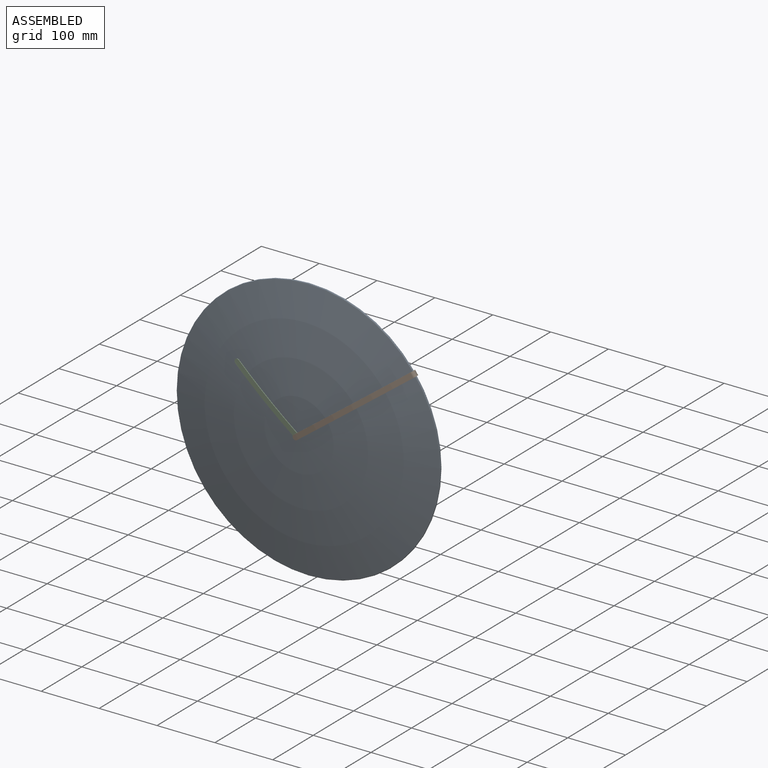
[diagram: assembled view]
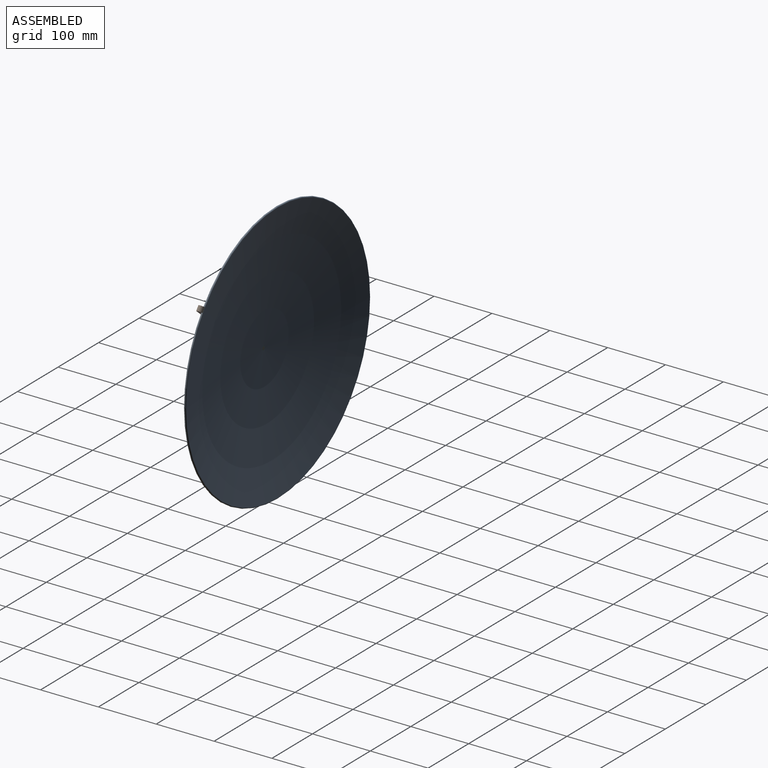
[diagram: assembled view, second angle]
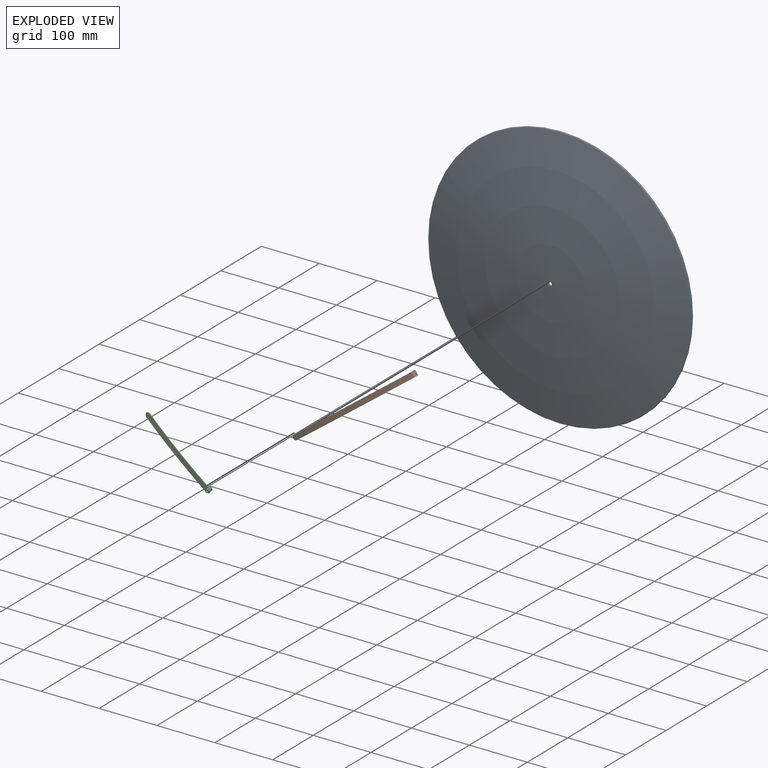
[diagram: exploded view]
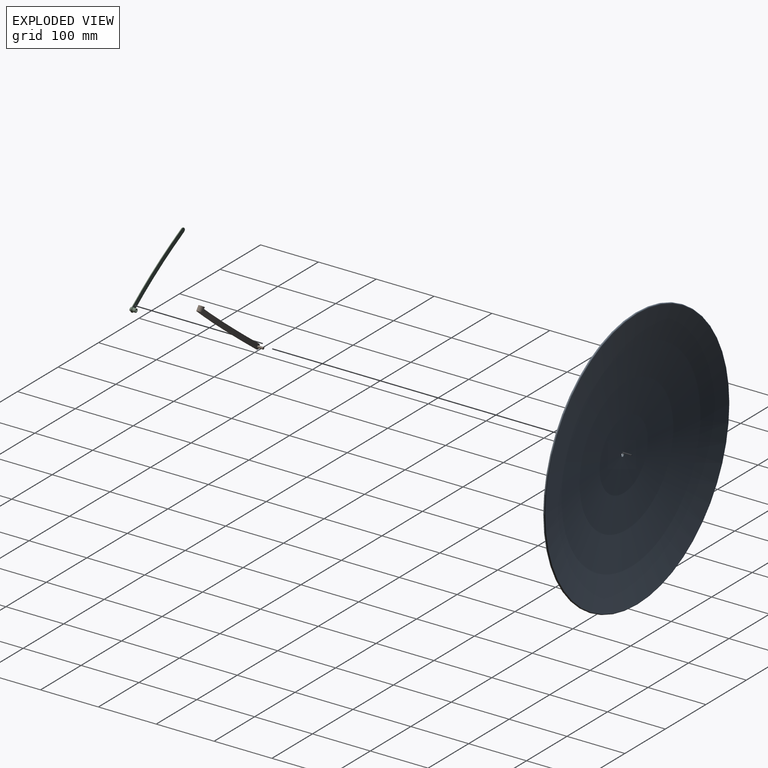
[diagram: exploded view, second angle]
ASSEMBLY  parts=3 mates=2
PART A: 6 faces, bbox 494.3x28.2x494.3 mm
  f0: sphere r=1038.22mm, area 163345.1mm2, adj f1,f5
  f1: torus R=226.94mm, axis (0,1,0), area 2850mm2, adj f0,f2
  f2: cone r=228.32mm half-angle=12.7deg, axis (0,-1,0), area 910.7mm2, adj f1,f3
  f3: torus R=227.08mm, axis (0,1,0), area 2860.7mm2, adj f2,f4
  f4: sphere r=1041.4mm, area 164347mm2, adj f3,f5
  f5: cylinder r=3.17mm len=6.35mm, axis (0,1,0), area 63.3mm2, adj f0,f4
PART B: 12 faces, bbox 8.9x35.9x237.7 mm
  f0: plane 8.89x1.34mm, normal (0,-0.22,-0.98), area 12.2mm2, adj f1,f6,f7,f8
  f1: cylinder r=5.35mm len=10.53mm, axis (-1,0,0), area 133.3mm2, adj f0,f2,f7,f8
  f2: cylinder r=1049.02mm len=225.84mm, axis (-1,0,0), area 2024.3mm2, adj f1,f3,f7,f8
  f3: plane 8.9x7.63mm, normal (0,-1,0), area 59.3mm2, adj f2,f7,f8,f9
  f4: plane 8.9x7.63mm, normal (0,1,0), area 47.9mm2, adj f5,f7,f8,f9,f10
  f5: cylinder r=1047.75mm len=225.57mm, axis (-1,0,0), area 2021.8mm2, adj f4,f6,f7,f8
  f6: cylinder r=4.08mm len=8.89mm, axis (-1,0,0), area 97.6mm2, adj f0,f5,f7,f8
  f7: plane 233.2x35.84mm, normal (1,0,0), area 309.5mm2, adj f0,f1,f2,f3,f4,f5,f6,f9
  f8: plane 233.2x35.84mm, normal (-1,0,0), area 309.5mm2, adj f0,f1,f2,f3,f4,f5,f6,f9
  f9: cylinder r=4.45mm len=8.89mm, axis (0,-1,0), area 17.7mm2, adj f3,f4,f7,f8
  f10: cylinder r=1.91mm len=9.53mm, axis (0,-1,0), area 114mm2, adj f4,f11
  f11: plane 3.81x3.81mm, normal (0,1,0), area 11.4mm2, adj f10
PART C: 21 faces, bbox 11.6x13.6x148.7 mm
  f0: plane 3.18x1.33mm, normal (0,1,0), area 1.3mm2, adj f5,f7,f19
  f1: plane 3.18x1.33mm, normal (0,-1,0), area 1.3mm2, adj f2,f6,f16
  f2: cylinder r=1045.21mm len=139.7mm, axis (-1,0,0), area 1237.4mm2, adj f1,f3,f6,f7,f9,f15,f17
  f3: plane 3.18x1.33mm, normal (0,-1,0), area 1.3mm2, adj f2,f7,f16
  f4: plane 3.18x1.33mm, normal (0,1,0), area 1.3mm2, adj f5,f6,f19
  f5: cylinder r=1043.94mm len=139.53mm, axis (-1,0,0), area 1235.9mm2, adj f0,f4,f6,f7,f9,f18,f20
  f6: plane 138.47x10.47mm, normal (1,0,0), area 176.3mm2, adj f1,f2,f4,f5,f8,f9
  f7: plane 138.47x10.47mm, normal (-1,0,0), area 176.3mm2, adj f0,f2,f3,f5,f8,f9
  f8: cylinder r=4.45mm len=8.89mm, axis (0,-1,0), area 17.7mm2, adj f6,f7,f16,f19
  f9: cylinder r=4.45mm len=8.89mm, axis (0,0.99,-0.14), area 17.7mm2, adj f2,f5,f6,f7
  f10: plane 6.35x6.35mm, normal (0,1,0), area 20.3mm2, adj f11,f14
  f11: cylinder r=3.17mm len=6.35mm, axis (0,1,0), area 91.1mm2, adj f10,f18,f19,f20
  f12: cylinder r=3.17mm len=6.35mm, axis (0,1,0), area 27.7mm2, adj f13,f15,f16,f17
  f13: plane 6.35x6.35mm, normal (0,-1,0), area 20.3mm2, adj f12,f14
  f14: cylinder r=1.91mm len=9.53mm, axis (0,-1,0), area 114mm2, adj f10,f13
  f15: bspline ~3.21x1.33mm, area 2.5mm2, adj f2,f12,f16
  f16: torus R=4.45mm, axis (0,1,0), area 34.3mm2, adj f1,f3,f8,f12,f15,f17
  f17: bspline ~3.21x1.33mm, area 2.5mm2, adj f2,f12,f16
  f18: bspline ~3.21x1.33mm, area 2.5mm2, adj f5,f11,f19
  f19: torus R=4.45mm, axis (0,-1,0), area 34.3mm2, adj f0,f4,f8,f11,f18,f20
  f20: bspline ~3.11x1.27mm, area 2.5mm2, adj f5,f11,f19
PLACE A t=(-0.16,17.44,0.3)mm fixed
PLACE B rot(axis=(0,1,0),53.4deg) t=(-0.24,17.44,0.4)mm
PLACE C rot(axis=(0,-1,0),52.6deg) t=(-0.16,17.44,0.3)mm
MATE revolute A.f1 <-> C.f11  axis (0,1,0) through (-0.16,-4.78,0.3)mm
MATE revolute B.f10 <-> C.f11  axis (0,-1,0) through (-0.16,-4.78,0.3)mm
